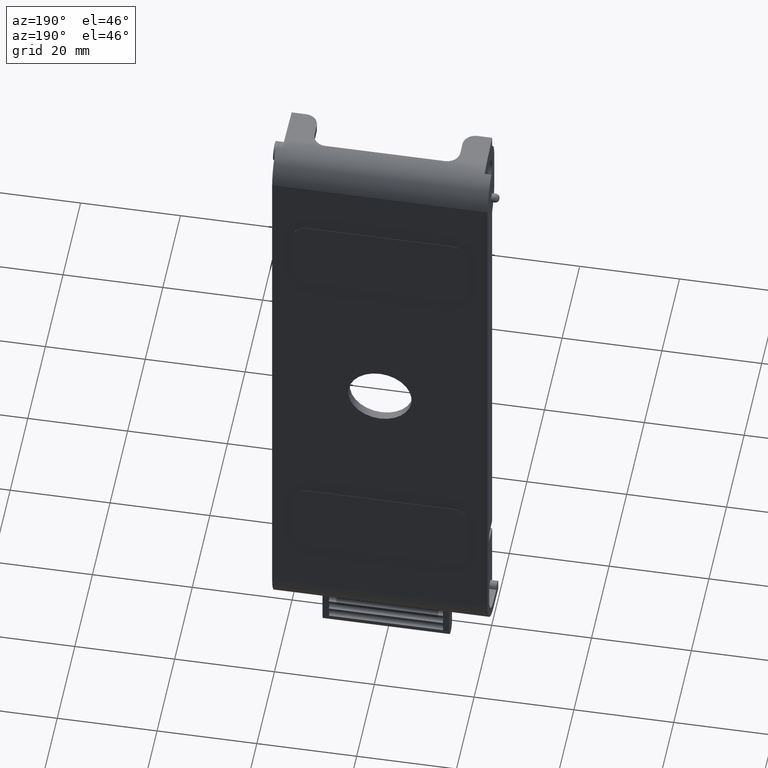
[diagram: clean part render]
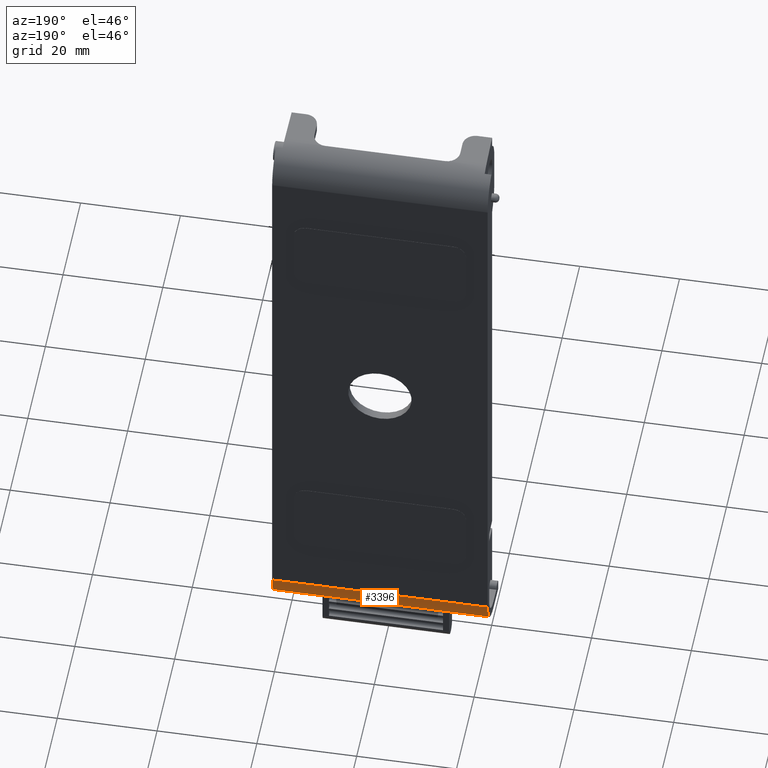
[diagram: same view with one face highlighted and labeled with its STEP entity id]
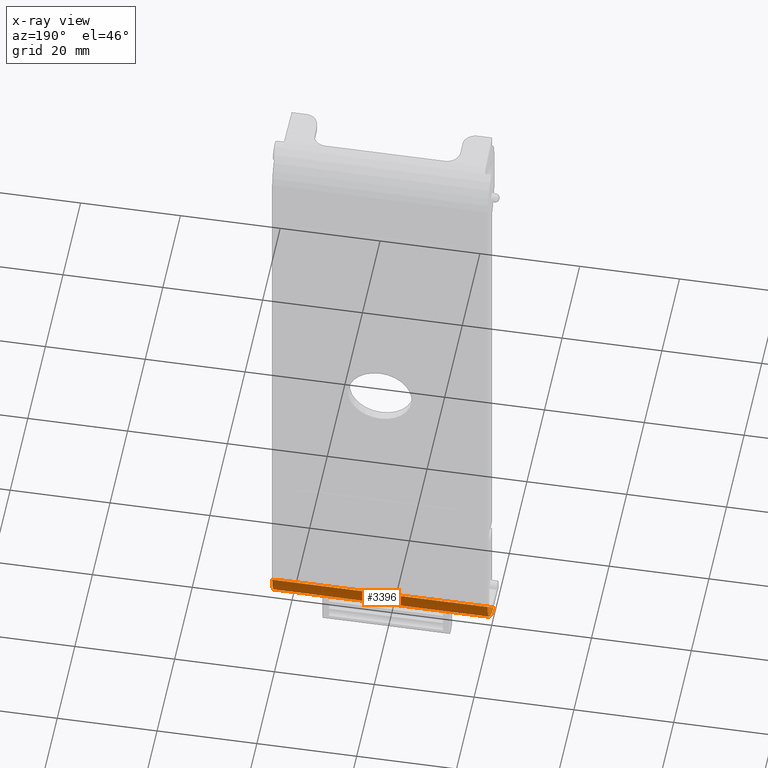
[diagram: x-ray of the same camera — body ghosted, the highlighted face saturated]
A machine part, auxiliary view. The second image highlights one B-rep face of the part: STEP entity #3396.
The next image is the same camera in x-ray: the body ghosted, the highlighted face saturated — about 0% of this face is hidden behind the body in this view.
In plain terms, the highlighted cylindrical surface (edge-blend (fillet) strip) has radius 6.858 mm, axis along (1, 0, 0).
Its self-contained STEP definition (entity closure, byte-faithful):
#18 = CARTESIAN_POINT ( 'NONE',  ( 0.8000000000000000400, 0.2744228641096752600, -2.476599554097246500 ) ) ;
#178 = FACE_OUTER_BOUND ( 'NONE', #2073, .T. ) ;
#304 = CARTESIAN_POINT ( 'NONE',  ( -0.8500000000000000900, 0.5349999999999998100, -2.206764030802090400 ) ) ;
#342 = CARTESIAN_POINT ( 'NONE',  ( -0.8500000000000000900, 0.2744228641096752600, -2.476599554097245600 ) ) ;
#446 = CIRCLE ( 'NONE', #2940, 0.2699999999999998500 ) ;
#483 = AXIS2_PLACEMENT_3D ( 'NONE', #1272, #3568, #1604 ) ;
#546 = AXIS2_PLACEMENT_3D ( 'NONE', #1686, #1032, #3655 ) ;
#609 = ORIENTED_EDGE ( 'NONE', *, *, #3337, .F. ) ;
#669 = CARTESIAN_POINT ( 'NONE',  ( 0.8000000000000000400, 0.5350000000000000300, -2.206764030802090800 ) ) ;
#802 = EDGE_CURVE ( 'NONE', #2402, #1823, #446, .T. ) ;
#1032 = DIRECTION ( 'NONE',  ( 1.000000000000000000, 0.0000000000000000000, 0.0000000000000000000 ) ) ;
#1140 = EDGE_CURVE ( 'NONE', #3650, #2374, #2610, .T. ) ;
#1167 = LINE ( 'NONE', #669, #3001 ) ;
#1241 = CARTESIAN_POINT ( 'NONE',  ( 0.8500000000000000900, 0.2744228641096752600, -2.476599554097245600 ) ) ;
#1272 = CARTESIAN_POINT ( 'NONE',  ( -0.8500000000000000900, 0.2649999999999999600, -2.206764030802090400 ) ) ;
#1399 = CARTESIAN_POINT ( 'NONE',  ( 0.8500000000000000900, 0.2649999999999999600, -2.206764030802090400 ) ) ;
#1604 = DIRECTION ( 'NONE',  ( 0.0000000000000000000, 0.0000000000000000000, 1.000000000000000000 ) ) ;
#1686 = CARTESIAN_POINT ( 'NONE',  ( 0.8000000000000000400, 0.2650000000000000100, -2.206764030802090800 ) ) ;
#1738 = DIRECTION ( 'NONE',  ( 0.0000000000000000000, 0.0000000000000000000, 1.000000000000000000 ) ) ;
#1823 = VERTEX_POINT ( 'NONE', #1241 ) ;
#1857 = ORIENTED_EDGE ( 'NONE', *, *, #3374, .F. ) ;
#2002 = DIRECTION ( 'NONE',  ( 1.000000000000000000, -0.0000000000000000000, -0.0000000000000000000 ) ) ;
#2073 = EDGE_LOOP ( 'NONE', ( #3765, #609, #2244, #1857 ) ) ;
#2244 = ORIENTED_EDGE ( 'NONE', *, *, #802, .T. ) ;
#2374 = VERTEX_POINT ( 'NONE', #342 ) ;
#2402 = VERTEX_POINT ( 'NONE', #3664 ) ;
#2610 = CIRCLE ( 'NONE', #483, 0.2699999999999998500 ) ;
#2906 = LINE ( 'NONE', #18, #3576 ) ;
#2940 = AXIS2_PLACEMENT_3D ( 'NONE', #1399, #3713, #1738 ) ;
#3001 = VECTOR ( 'NONE', #3965, 39.37007874015748100 ) ;
#3337 = EDGE_CURVE ( 'NONE', #2402, #3650, #1167, .T. ) ;
#3374 = EDGE_CURVE ( 'NONE', #2374, #1823, #2906, .T. ) ;
#3396 = ADVANCED_FACE ( 'NONE', ( #178 ), #3473, .T. ) ;
#3473 = CYLINDRICAL_SURFACE ( 'NONE', #546, 0.2700000000000001300 ) ;
#3568 = DIRECTION ( 'NONE',  ( -1.000000000000000000, -0.0000000000000000000, -0.0000000000000000000 ) ) ;
#3576 = VECTOR ( 'NONE', #2002, 39.37007874015748100 ) ;
#3650 = VERTEX_POINT ( 'NONE', #304 ) ;
#3655 = DIRECTION ( 'NONE',  ( 0.0000000000000000000, 0.0000000000000000000, -1.000000000000000000 ) ) ;
#3664 = CARTESIAN_POINT ( 'NONE',  ( 0.8500000000000000900, 0.5349999999999998100, -2.206764030802090400 ) ) ;
#3713 = DIRECTION ( 'NONE',  ( -1.000000000000000000, 0.0000000000000000000, 0.0000000000000000000 ) ) ;
#3765 = ORIENTED_EDGE ( 'NONE', *, *, #1140, .F. ) ;
#3965 = DIRECTION ( 'NONE',  ( -1.000000000000000000, -0.0000000000000000000, -0.0000000000000000000 ) ) ;